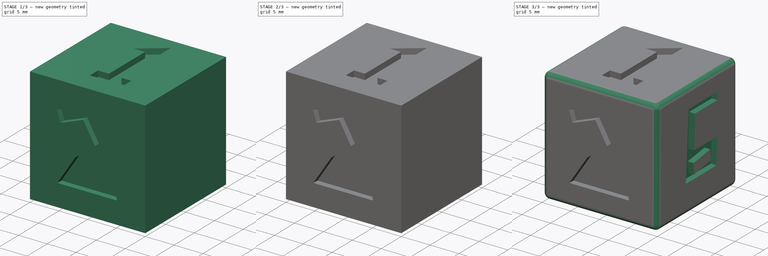
[diagram: build sequence overview — one tinted view per stage of 3, left to right]
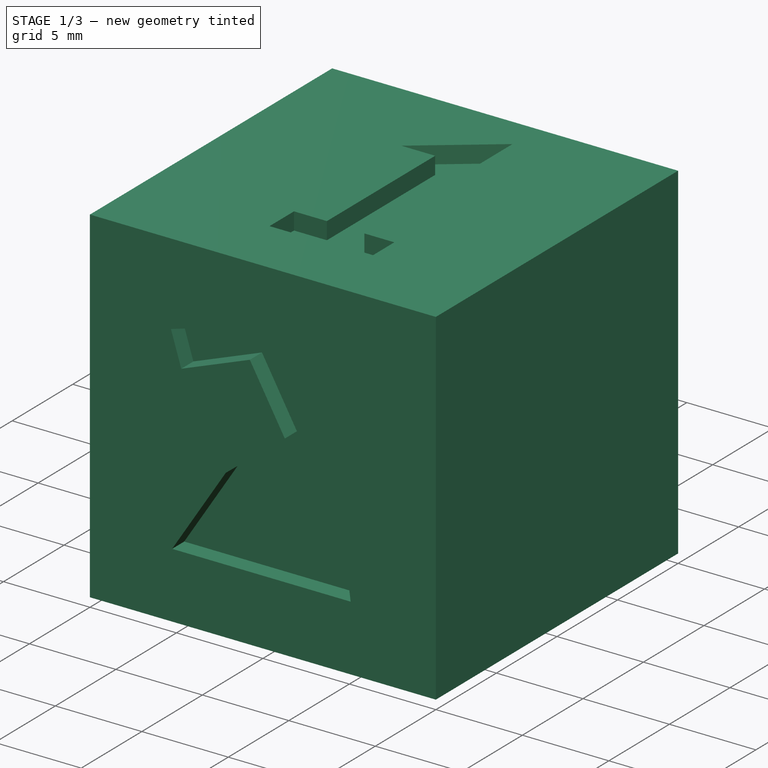
[diagram: stage 1 of 3 — iso view after this stage's code; geometry added in this stage tinted green]
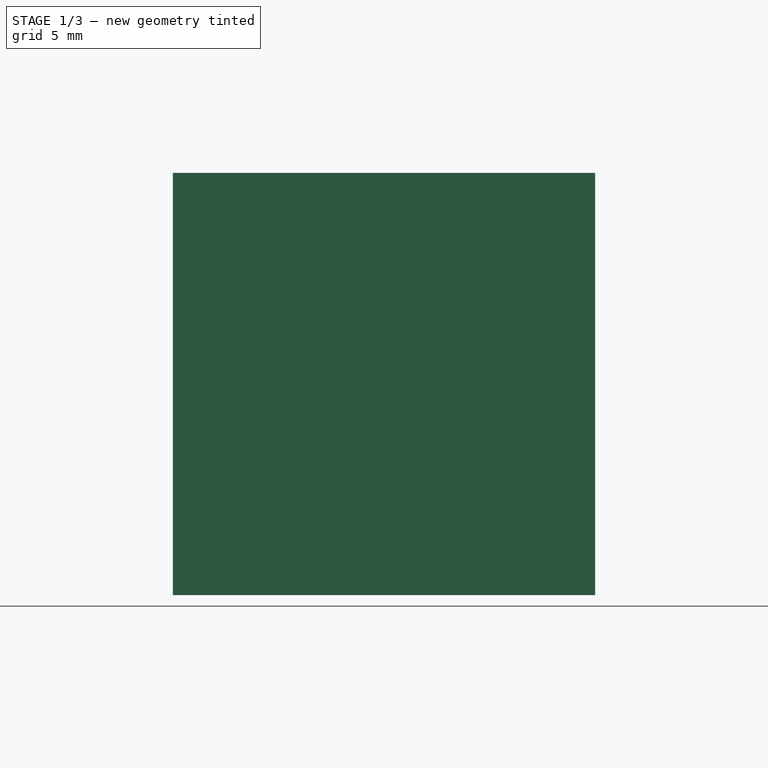
[diagram: stage 1 of 3 — front view after this stage's code; geometry added in this stage tinted green]
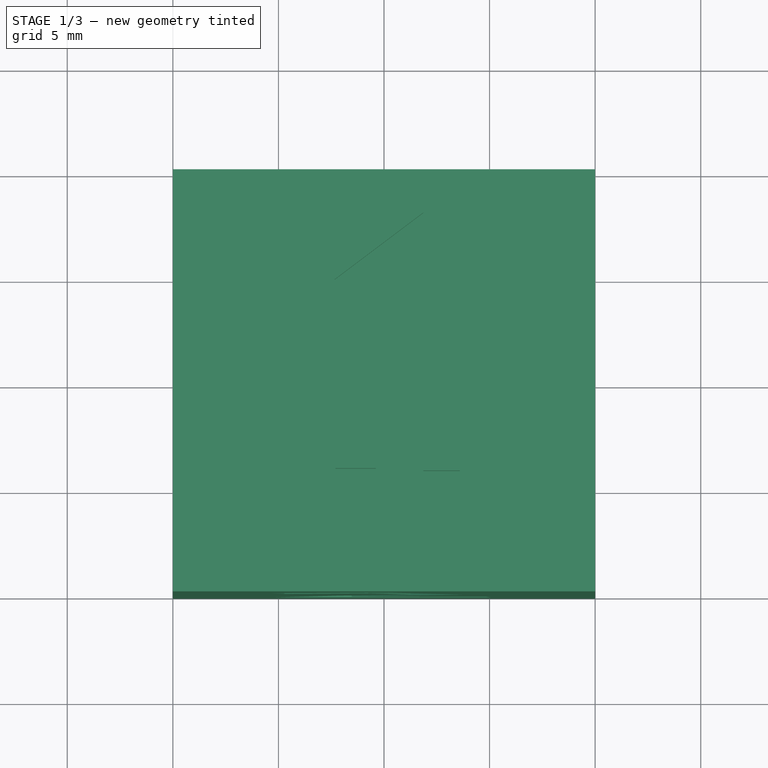
[diagram: stage 1 of 3 — top view after this stage's code; geometry added in this stage tinted green]
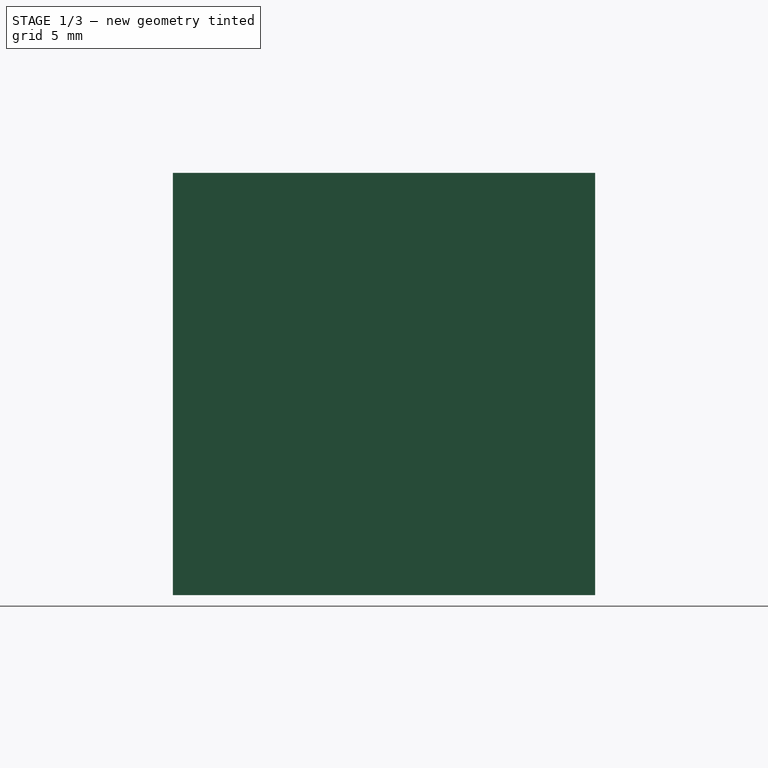
[diagram: stage 1 of 3 — right view after this stage's code; geometry added in this stage tinted green]
FCSTD DOCUMENT  (FreeCAD 0.15R4671 (Git))
Label: dice
License: All rights reserved
LicenseURL: http://en.wikipedia.org/wiki/All_rights_reserved
objects: Sketcher::SketchObject×6, PartDesign::Pocket×6, Part::Box×1, PartDesign::Fillet×1
note: 20 computed .brp shape members not serialized (recipe doc carries the construction recipe); baked Part::Feature solids carry a one-line shape summary decoded from their .brp

FEATURE [Part::Box] Box  label="Cube"
  Height = 20
  Length = 20
  Width = 20
FEATURE [Sketcher::SketchObject] Sketch
  Placement = pos=(0,0,20) rot=(0,0,1;0rad)
  Support = -> Box [Face6]
  sketch-geometry (9):
    g0: LineSegment StartX=7.65324 StartY=14.7766 StartZ=0 EndX=11.8638 EndY=17.949 EndZ=0
    g1: LineSegment StartX=11.8638 StartY=17.949 StartZ=0 EndX=11.8638 EndY=5.72099 EndZ=0
    g2: LineSegment StartX=11.8638 StartY=5.72099 StartZ=0 EndX=13.5942 EndY=5.72099 EndZ=0
    g3: LineSegment StartX=13.5942 StartY=5.72099 StartZ=0 EndX=13.5942 EndY=3.81758 EndZ=0
    g4: LineSegment StartX=13.5942 StartY=3.81758 StartZ=0 EndX=7.71092 EndY=3.81758 EndZ=0
    g5: LineSegment StartX=7.71092 StartY=3.81758 StartZ=0 EndX=7.71092 EndY=5.83635 EndZ=0
    g6: LineSegment StartX=7.71092 StartY=5.83635 StartZ=0 EndX=9.61433 EndY=5.83635 EndZ=0
    g7: LineSegment StartX=9.61433 StartY=5.83635 StartZ=0 EndX=9.61433 EndY=14.7766 EndZ=0
    g8: LineSegment StartX=9.61433 StartY=14.7766 StartZ=0 EndX=7.65324 EndY=14.7766 EndZ=0
  constraints (27):
    c: Coincident(g0,g1)
    c: Vertical(g1)
    c: Coincident(g1,g2)
    c: Horizontal(g2)
    c: Coincident(g2,g3)
    c: Vertical(g3)
    c: Coincident(g3,g4)
    c: Horizontal(g4)
    c: Coincident(g4,g5)
    c: Vertical(g5)
    c: Coincident(g5,g6)
    c: Horizontal(g6)
    c: Coincident(g6,g7)
    c: Vertical(g7)
    c: Coincident(g7,g8)
    c: Coincident(g8,g0)
    c: Horizontal(g8)
    c: DistanceX(g0) = 11.8638
    c: DistanceY(g0) = 17.949
    c: DistanceX(g0) = 7.65324
    c: DistanceY(g0) = 14.7766
    c: DistanceX(g6) = 9.61433
    c: DistanceY(g6) = 5.83635
    c: DistanceX(g4) = 7.71092
    c: DistanceY(g4) = 3.81758
    c: DistanceX(g2) = 13.5942
    c: DistanceY(g2) = 5.72099
FEATURE [PartDesign::Pocket] Pocket
  Length = 1
  Sketch = -> Sketch
  Type = 0
FEATURE [Sketcher::SketchObject] Sketch001
  Placement = pos=(0,0,0) rot=(1,0,0;1.5708rad)
  Support = -> Pocket [Face2]
  sketch-geometry (11):
    g0: LineSegment StartX=15.0741 StartY=3.80233 StartZ=0 EndX=4.75099 EndY=3.80233 EndZ=0
    g1: LineSegment StartX=4.75099 StartY=3.80233 StartZ=0 EndX=7.85639 EndY=8.60723 EndZ=0
    g2: LineSegment StartX=7.85639 StartY=8.60723 StartZ=0 EndX=11.2668 EndY=11.3071 EndZ=0
    g3: LineSegment StartX=11.2668 StartY=11.3071 StartZ=0 EndX=9.24532 EndY=14.8836 EndZ=0
    g4: LineSegment StartX=9.24532 StartY=14.8836 StartZ=0 EndX=5.28004 EndY=13.3545 EndZ=0
    g5: LineSegment StartX=5.28004 StartY=13.3545 StartZ=0 EndX=4.68395 EndY=15.2724 EndZ=0
    g6: LineSegment StartX=4.68395 StartY=15.2724 StartZ=0 EndX=10.2302 EndY=16.9311 EndZ=0
    g7: LineSegment StartX=10.2302 StartY=16.9311 StartZ=0 EndX=13.7549 EndY=11.022 EndZ=0
    g8: LineSegment StartX=13.7549 StartY=11.022 StartZ=0 EndX=8.47501 EndY=6.01677 EndZ=0
    g9: LineSegment StartX=8.47501 StartY=6.01677 StartZ=0 EndX=14.8545 EndY=5.43682 EndZ=0
    g10: LineSegment StartX=14.8545 StartY=5.43682 StartZ=0 EndX=15.0741 EndY=3.80233 EndZ=0
  constraints (12):
    c: Horizontal(g0)
    c: Coincident(g0,g1)
    c: Coincident(g1,g2)
    c: Coincident(g2,g3)
    c: Coincident(g3,g4)
    c: Coincident(g4,g5)
    c: Coincident(g5,g6)
    c: Coincident(g6,g7)
    c: Coincident(g7,g8)
    c: Coincident(g8,g9)
    c: Coincident(g9,g10)
    c: Coincident(g10,g0)
FEATURE [PartDesign::Pocket] Pocket001
  Length = 1
  Sketch = -> Sketch001
  Type = 0
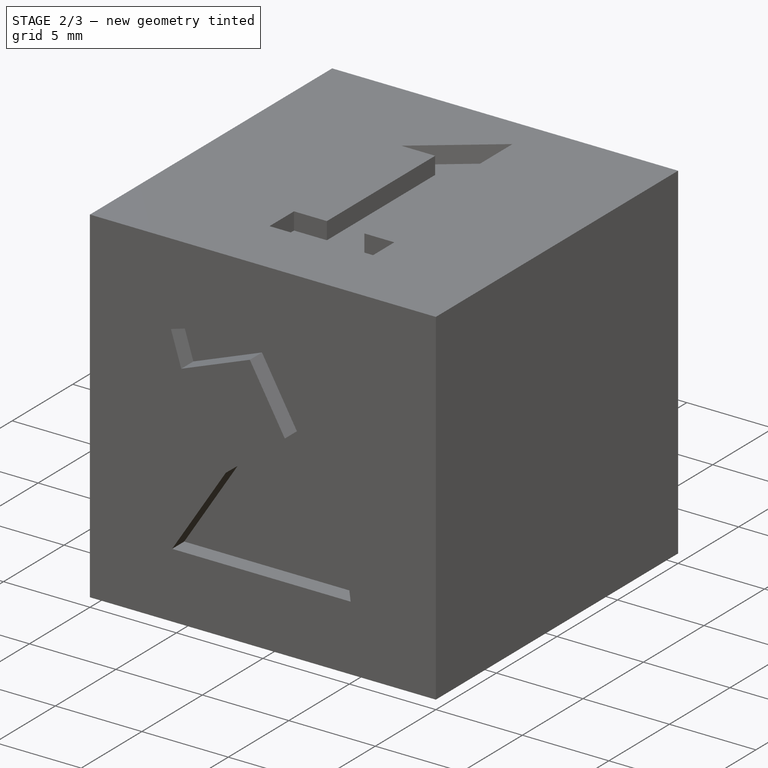
[diagram: stage 2 of 3 — iso view after this stage's code; geometry added in this stage tinted green]
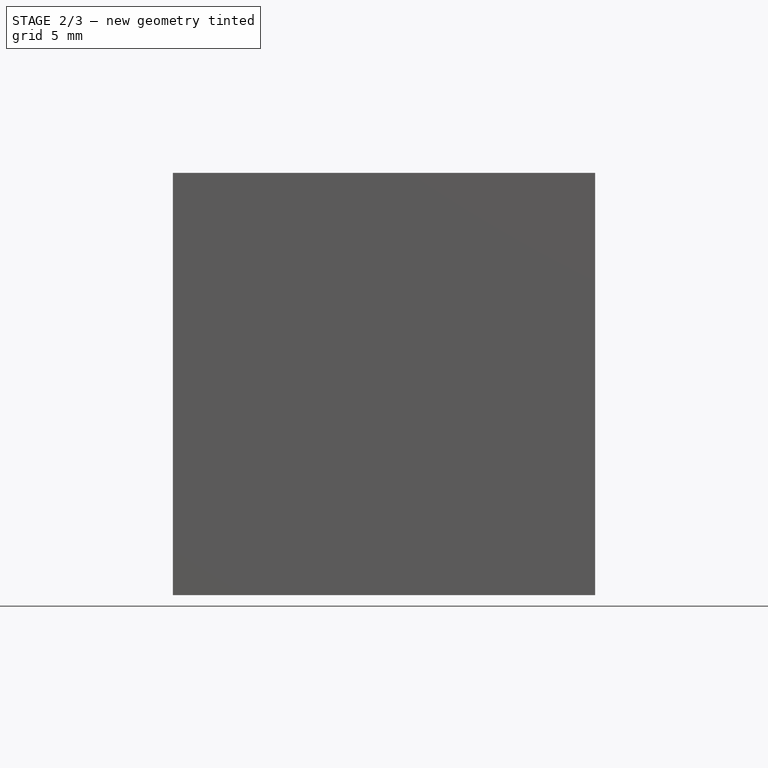
[diagram: stage 2 of 3 — front view after this stage's code; geometry added in this stage tinted green]
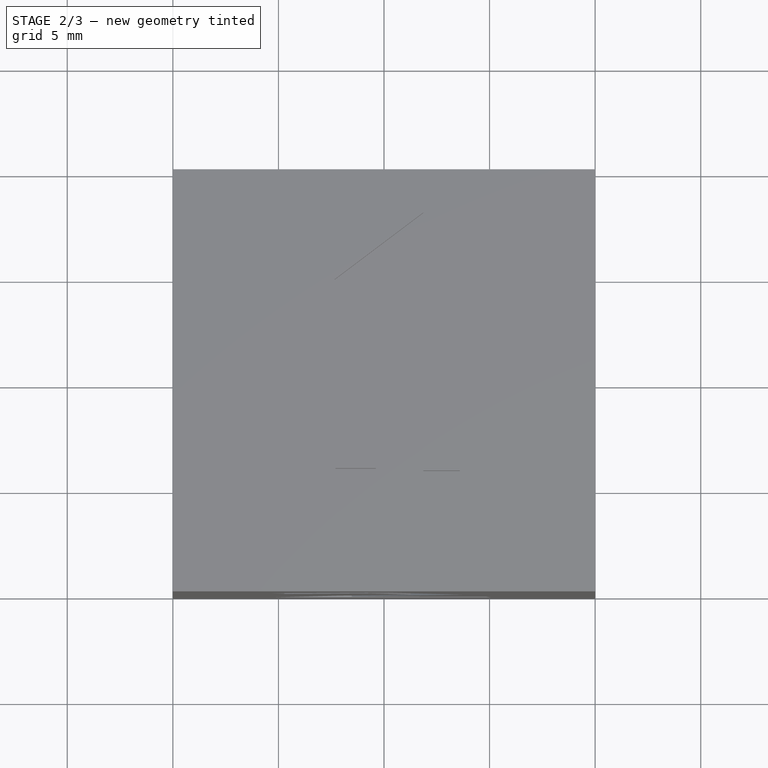
[diagram: stage 2 of 3 — top view after this stage's code; geometry added in this stage tinted green]
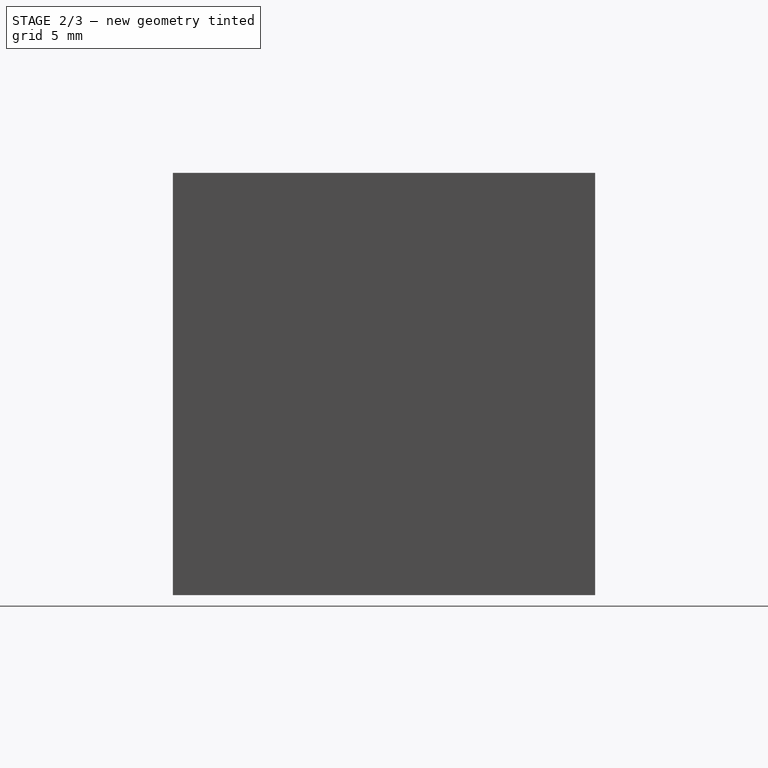
[diagram: stage 2 of 3 — right view after this stage's code; geometry added in this stage tinted green]
FEATURE [Sketcher::SketchObject] Sketch002
  Placement = pos=(0,0,0) rot=(1,0,0;3.14159rad)
  Support = -> Pocket001 [Face5]
  sketch-geometry (14):
    g0: LineSegment StartX=12.9597 StartY=-1.56809 StartZ=0 EndX=6.96109 EndY=-1.85648 EndZ=0
    g1: LineSegment StartX=6.96109 StartY=-1.85648 StartZ=0 EndX=7.13412 EndY=-5.77867 EndZ=0
    g2: LineSegment StartX=7.13412 StartY=-5.77867 StartZ=0 EndX=8.8645 EndY=-7.85512 EndZ=0
    g3: LineSegment StartX=8.8645 StartY=-7.85512 StartZ=0 EndX=6.90341 EndY=-9.23942 EndZ=0
    g4: LineSegment StartX=6.90341 StartY=-9.23942 StartZ=0 EndX=6.90341 EndY=-13.9114 EndZ=0
    g5: LineSegment StartX=6.90341 StartY=-13.9114 StartZ=0 EndX=13.1904 EndY=-13.9114 EndZ=0
    g6: LineSegment StartX=13.1904 StartY=-13.9114 StartZ=0 EndX=12.556 EndY=-11.7773 EndZ=0
    g7: LineSegment StartX=12.556 StartY=-11.7773 StartZ=0 EndX=8.57611 EndY=-11.4889 EndZ=0
    g8: LineSegment StartX=8.57611 StartY=-11.4889 StartZ=0 EndX=8.97986 EndY=-9.41245 EndZ=0
    g9: LineSegment StartX=8.97986 StartY=-9.41245 StartZ=0 EndX=10.7102 EndY=-8.20119 EndZ=0
    g10: LineSegment StartX=10.7102 StartY=-8.20119 StartZ=0 EndX=8.51843 EndY=-5.49027 EndZ=0
    g11: LineSegment StartX=8.51843 StartY=-5.49027 StartZ=0 EndX=8.51843 EndY=-3.70222 EndZ=0
    g12: LineSegment StartX=8.51843 StartY=-3.70222 StartZ=0 EndX=12.9597 EndY=-3.70222 EndZ=0
    g13: LineSegment StartX=12.9597 StartY=-3.70222 StartZ=0 EndX=12.9597 EndY=-1.56809 EndZ=0
  constraints (19):
    c: Coincident(g0,g1)
    c: Coincident(g1,g2)
    c: Coincident(g2,g3)
    c: Coincident(g3,g4)
    c: Vertical(g4)
    c: Coincident(g4,g5)
    c: Horizontal(g5)
    c: Coincident(g5,g6)
    c: Coincident(g6,g7)
    c: Coincident(g7,g8)
    c: Coincident(g8,g9)
    c: Coincident(g9,g10)
    c: Coincident(g10,g11)
    c: Vertical(g11)
    c: Coincident(g11,g12)
    c: Horizontal(g12)
    c: Coincident(g12,g13)
    c: Coincident(g13,g0)
    c: Vertical(g13)
FEATURE [PartDesign::Pocket] Pocket002
  Length = 1
  Sketch = -> Sketch002
  Type = 0
FEATURE [Sketcher::SketchObject] Sketch003
  Placement = pos=(0,20,0) rot=(0,0.707107,0.707107;3.14159rad)
  Support = -> Pocket002 [Face4]
  sketch-geometry (11):
    g0: LineSegment StartX=-14.171 StartY=16.9108 StartZ=0 EndX=-14.171 EndY=11.8927 EndZ=0
    g1: LineSegment StartX=-14.171 StartY=11.8927 StartZ=0 EndX=-10.3642 EndY=11.8927 EndZ=0
    g2: LineSegment StartX=-10.3642 StartY=11.8927 StartZ=0 EndX=-10.3642 EndY=6.12476 EndZ=0
    g3: LineSegment StartX=-10.3642 StartY=6.12476 StartZ=0 EndX=-8.05699 EndY=6.12476 EndZ=0
    g4: LineSegment StartX=-8.05699 StartY=6.12476 StartZ=0 EndX=-8.34539 EndY=11.6043 EndZ=0
    g5: LineSegment StartX=-8.34539 StartY=11.6043 StartZ=0 EndX=-8.34539 EndY=17.0838 EndZ=0
    g6: LineSegment StartX=-8.34539 StartY=17.0838 StartZ=0 EndX=-9.67201 EndY=16.7954 EndZ=0
    g7: LineSegment StartX=-9.67201 StartY=16.7954 StartZ=0 EndX=-9.78737 EndY=13.623 EndZ=0
    g8: LineSegment StartX=-9.78737 StartY=13.623 StartZ=0 EndX=-12.1522 EndY=13.7961 EndZ=0
    g9: LineSegment StartX=-12.1522 StartY=13.7961 StartZ=0 EndX=-12.6713 EndY=16.68 EndZ=0
    g10: LineSegment StartX=-12.6713 StartY=16.68 StartZ=0 EndX=-14.171 EndY=16.9108 EndZ=0
  constraints (16):
    c: Vertical(g0)
    c: Coincident(g0,g1)
    c: Horizontal(g1)
    c: Coincident(g1,g2)
    c: Vertical(g2)
    c: Coincident(g2,g3)
    c: Horizontal(g3)
    c: Coincident(g3,g4)
    c: Coincident(g4,g5)
    c: Vertical(g5)
    c: Coincident(g5,g6)
    c: Coincident(g6,g7)
    c: Coincident(g7,g8)
    c: Coincident(g8,g9)
    c: Coincident(g9,g10)
    c: Coincident(g10,g0)
FEATURE [PartDesign::Pocket] Pocket003
  Length = 1
  Sketch = -> Sketch003
  Type = 0
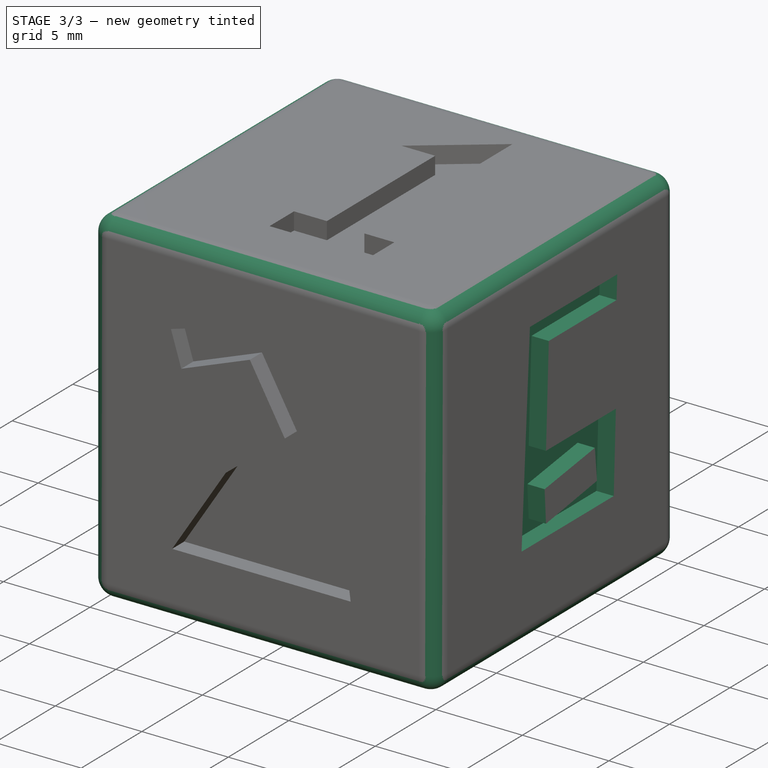
[diagram: stage 3 of 3 — iso view after this stage's code; geometry added in this stage tinted green]
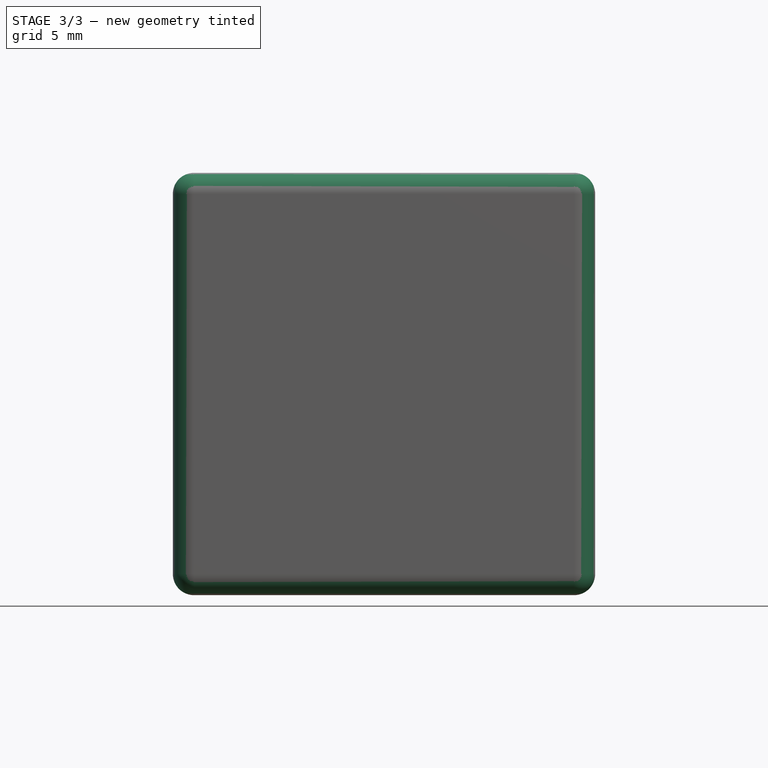
[diagram: stage 3 of 3 — front view after this stage's code; geometry added in this stage tinted green]
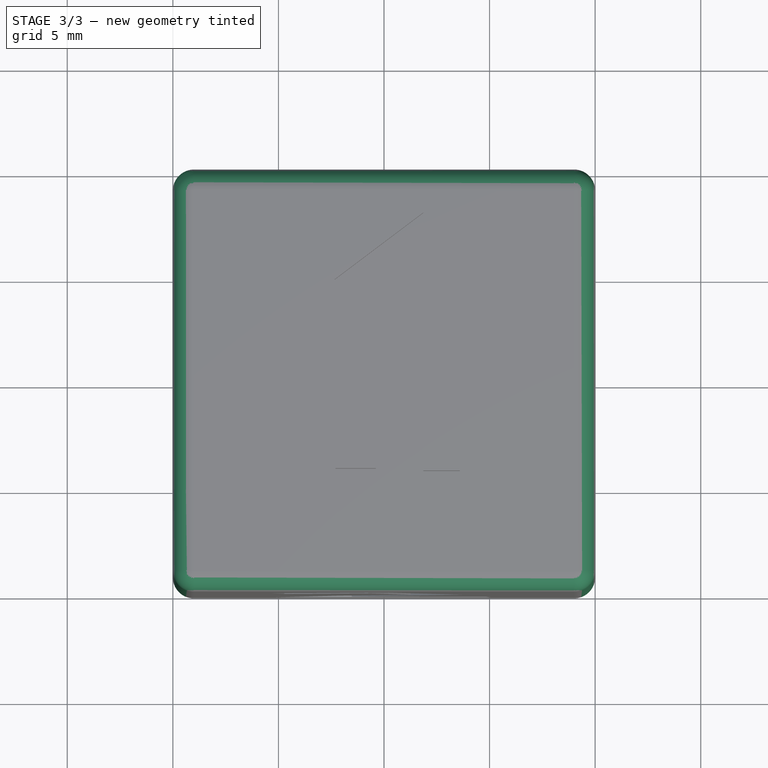
[diagram: stage 3 of 3 — top view after this stage's code; geometry added in this stage tinted green]
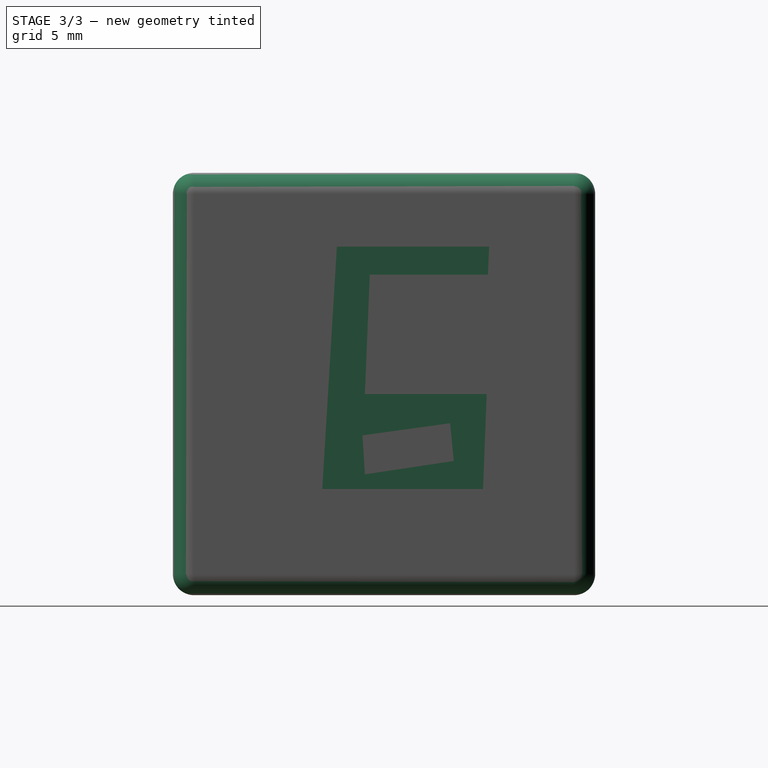
[diagram: stage 3 of 3 — right view after this stage's code; geometry added in this stage tinted green]
FEATURE [Sketcher::SketchObject] Sketch004
  Placement = pos=(0,0,0) rot=(0.57735,-0.57735,-0.57735;2.0944rad)
  Support = -> Pocket003 [Face1]
  sketch-geometry (13):
    g0: LineSegment StartX=-4.71161 StartY=17.4299 StartZ=0 EndX=-13.0751 EndY=17.4299 EndZ=0
    g1: LineSegment StartX=-13.0751 StartY=17.4299 StartZ=0 EndX=-13.3635 EndY=11.7196 EndZ=0
    g2: LineSegment StartX=-13.3635 StartY=11.7196 StartZ=0 EndX=-7.42253 EndY=11.9504 EndZ=0
    g3: LineSegment StartX=-7.42253 StartY=11.9504 StartZ=0 EndX=-7.42253 EndY=5.08653 EndZ=0
    g4: LineSegment StartX=-7.42253 StartY=5.08653 StartZ=0 EndX=-15.0939 EndY=4.22135 EndZ=0
    g5: LineSegment StartX=-15.0939 StartY=4.22135 StartZ=0 EndX=-14.6324 EndY=6.52851 EndZ=0
    g6: LineSegment StartX=-14.6324 StartY=6.52851 StartZ=0 EndX=-9.03754 EndY=6.93227 EndZ=0
    g7: LineSegment StartX=-9.03754 StartY=6.93227 StartZ=0 EndX=-9.72969 EndY=9.8739 EndZ=0
    g8: LineSegment StartX=-9.72969 StartY=9.8739 StartZ=0 EndX=-13.7672 EndY=9.8739 EndZ=0
    g9: LineSegment StartX=-13.7672 StartY=9.8739 StartZ=0 EndX=-15.2669 EndY=10.0469 EndZ=0
    g10: LineSegment StartX=-15.2669 StartY=10.0469 StartZ=0 EndX=-15.2669 EndY=19.0449 EndZ=0
    g11: LineSegment StartX=-15.2669 StartY=19.0449 StartZ=0 EndX=-4.82697 EndY=19.0449 EndZ=0
    g12: LineSegment StartX=-4.82697 StartY=19.0449 StartZ=0 EndX=-4.71161 EndY=17.4299 EndZ=0
  constraints (18):
    c: Horizontal(g0)
    c: Coincident(g0,g1)
    c: Coincident(g1,g2)
    c: Coincident(g2,g3)
    c: Vertical(g3)
    c: Coincident(g3,g4)
    c: Coincident(g4,g5)
    c: Coincident(g5,g6)
    c: Coincident(g6,g7)
    c: Coincident(g7,g8)
    c: Horizontal(g8)
    c: Coincident(g8,g9)
    c: Coincident(g9,g10)
    c: Vertical(g10)
    c: Coincident(g10,g11)
    c: Horizontal(g11)
    c: Coincident(g11,g12)
    c: Coincident(g12,g0)
FEATURE [PartDesign::Pocket] Pocket004
  Length = 1
  Sketch = -> Sketch004
  Type = 0
FEATURE [Sketcher::SketchObject] Sketch005
  Placement = pos=(20,0,0) rot=(0.57735,0.57735,0.57735;2.0944rad)
  Support = -> Pocket004 [Face19]
  sketch-geometry (12):
    g0: LineSegment StartX=14.9785 StartY=16.507 StartZ=0 EndX=7.7686 EndY=16.507 EndZ=0
    g1: LineSegment StartX=7.7686 StartY=16.507 StartZ=0 EndX=7.07645 EndY=5.02885 EndZ=0
    g2: LineSegment StartX=7.07645 StartY=5.02885 StartZ=0 EndX=14.6901 EndY=5.02885 EndZ=0
    g3: LineSegment StartX=14.6901 StartY=5.02885 StartZ=0 EndX=14.8631 EndY=9.52782 EndZ=0
    g4: LineSegment StartX=14.8631 StartY=9.52782 StartZ=0 EndX=9.09522 EndY=9.52782 EndZ=0
    g5: LineSegment StartX=9.09522 StartY=9.52782 StartZ=0 EndX=9.32593 EndY=15.1804 EndZ=0
    g6: LineSegment StartX=9.32593 StartY=15.1804 StartZ=0 EndX=14.9208 EndY=15.1804 EndZ=0
    g7: LineSegment StartX=14.9208 StartY=15.1804 StartZ=0 EndX=14.9785 EndY=16.507 EndZ=0
    g8: LineSegment StartX=8.97986 StartY=7.56673 StartZ=0 EndX=9.09522 EndY=5.721 EndZ=0
    g9: LineSegment StartX=9.09522 StartY=5.721 StartZ=0 EndX=13.3058 EndY=6.35547 EndZ=0
    g10: LineSegment StartX=13.3058 StartY=6.35547 StartZ=0 EndX=13.1328 EndY=8.14352 EndZ=0
    g11: LineSegment StartX=13.1328 StartY=8.14352 StartZ=0 EndX=8.97986 EndY=7.56673 EndZ=0
  constraints (16):
    c: Horizontal(g0)
    c: Coincident(g0,g1)
    c: Coincident(g1,g2)
    c: Horizontal(g2)
    c: Coincident(g2,g3)
    c: Coincident(g3,g4)
    c: Horizontal(g4)
    c: Coincident(g4,g5)
    c: Coincident(g5,g6)
    c: Horizontal(g6)
    c: Coincident(g6,g7)
    c: Coincident(g7,g0)
    c: Coincident(g8,g9)
    c: Coincident(g9,g10)
    c: Coincident(g10,g11)
    c: Coincident(g11,g8)
FEATURE [PartDesign::Pocket] Pocket005
  Length = 1
  Sketch = -> Sketch005
  Type = 0
FEATURE [PartDesign::Fillet] Fillet
  Base = -> Pocket005 [Edge19,Edge33,Edge20,Edge2,Edge1,Edge44,Edge18,Edge43,Edge3,Edge4,Edge32,Edge59]
  Radius = 1
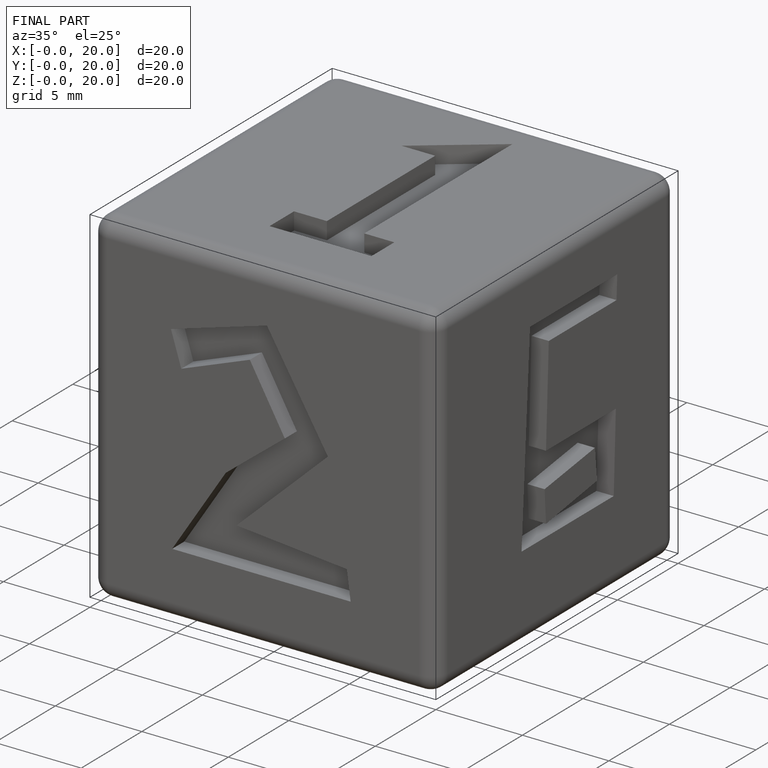
[diagram: finished part — iso view with bounding-box wireframe]
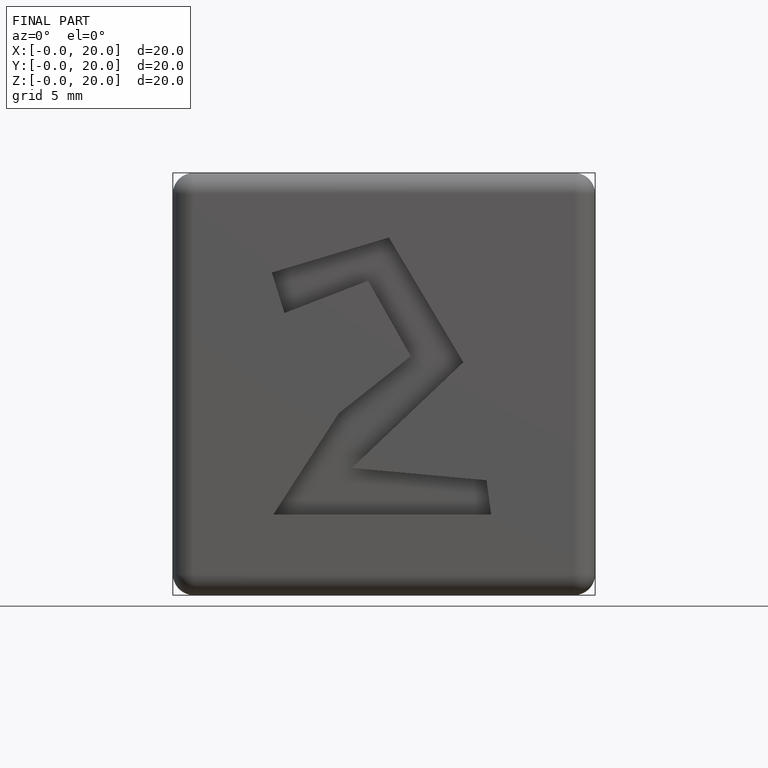
[diagram: finished part — front view with bounding-box wireframe]
